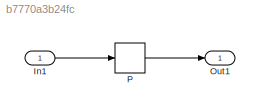
MODEL slx_b7770a3b24fc
KIND model
CONFIG AbsTol = auto
CONFIG EnableMultiTasking = off
CONFIG FixedStep = auto
CONFIG MaxStep = auto
CONFIG MinStep = auto
CONFIG RelTol = 1e-3
CONFIG SampleTimeConstraint = Unconstrained
CONFIG Solver = FixedStepDiscrete
CONFIG SolverName = FixedStepDiscrete
CONFIG StartTime = 0.0
CONFIG StopTime = 10.0
BLOCK [Inport] In1
  IconDisplay = Port number
BLOCK [Outport] Out1
  IconDisplay = Port number
BLOCK [DiscreteFir] P
  InputPortMap = u0
  OutDataTypeStr = Inherit: Same as input
  OutputPortMap = o0
  Ports = [1, 1]
  RndMeth = Ceiling
LINE In1:1 -> P:1
LINE P:1 -> Out1:1
